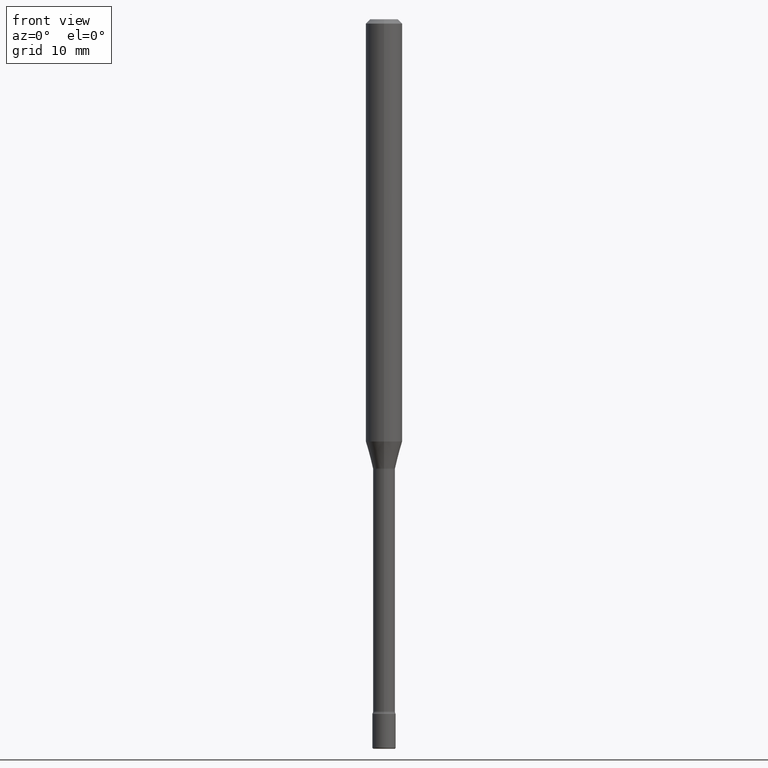
[diagram: clean part render]
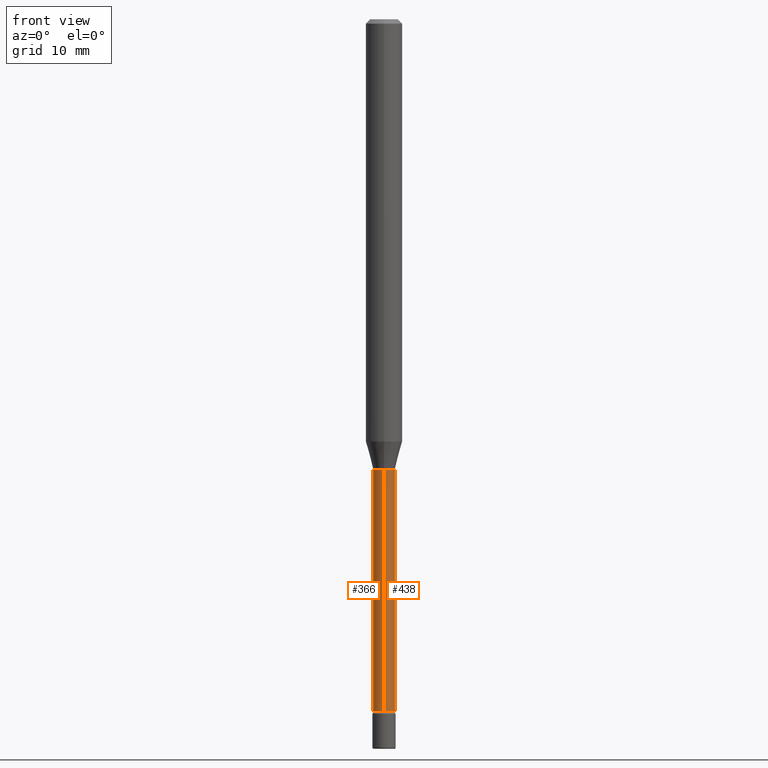
[diagram: same view with one multi-face feature highlighted, each face labeled with its STEP entity id]
A machine part, front view. The highlighted faces form ONE feature: a constant-radius fillet chain: 2 tangent blend faces with common blend radius 0.955 mm. The faces share edges in the B-rep.
Their STEP definitions:
[1] entity #438 (Cylinder):
#7 = VECTOR ( 'NONE', #489, 39.37007874015748143 ) ;
#29 = DIRECTION ( 'NONE',  ( -6.982962677686265922E-15, -1.000000000000000000, 0.000000000000000000 ) ) ;
#52 = EDGE_LOOP ( 'NONE', ( #415, #500, #278, #554 ) ) ;
#74 = AXIS2_PLACEMENT_3D ( 'NONE', #477, #80, #265 ) ;
#78 = DIRECTION ( 'NONE',  ( -2.445315096420110410E-29, 3.491701459975279518E-15, 1.000000000000000000 ) ) ;
#80 = DIRECTION ( 'NONE',  ( -2.445315096420110410E-29, 3.491701459975279518E-15, 1.000000000000000000 ) ) ;
#93 = LINE ( 'NONE', #332, #7 ) ;
#112 = CIRCLE ( 'NONE', #212, 0.03760000000000005699 ) ;
#128 = CARTESIAN_POINT ( 'NONE',  ( 2.671640686458558589E-16, 0.03759999999999461689, -1.541974787463811003 ) ) ;
#149 = VERTEX_POINT ( 'NONE', #227 ) ;
#165 = EDGE_CURVE ( 'NONE', #547, #270, #93, .T. ) ;
#167 = CYLINDRICAL_SURFACE ( 'NONE', #409, 0.03760000000000002923 ) ;
#208 = CIRCLE ( 'NONE', #74, 0.03760000000000000842 ) ;
#211 = FACE_OUTER_BOUND ( 'NONE', #52, .T. ) ;
#212 = AXIS2_PLACEMENT_3D ( 'NONE', #242, #514, #29 ) ;
#223 = DIRECTION ( 'NONE',  ( -2.445315096420110130E-29, 3.491701459975279518E-15, 1.000000000000000000 ) ) ;
#227 = CARTESIAN_POINT ( 'NONE',  ( -2.625593966809659350E-16, -0.03760000000000538606, -1.541974787463811003 ) ) ;
#242 = CARTESIAN_POINT ( 'NONE',  ( 5.799948008803896804E-29, -8.281831228936231021E-15, -2.371861204020250025 ) ) ;
#243 = VECTOR ( 'NONE', #223, 39.37007874015748143 ) ;
#265 = DIRECTION ( 'NONE',  ( -6.982962677686265922E-15, -1.000000000000000000, 0.000000000000000000 ) ) ;
#266 = EDGE_CURVE ( 'NONE', #387, #149, #351, .T. ) ;
#270 = VERTEX_POINT ( 'NONE', #128 ) ;
#275 = DIRECTION ( 'NONE',  ( -6.982962677686265922E-15, -1.000000000000000000, 3.491701459975280701E-15 ) ) ;
#278 = ORIENTED_EDGE ( 'NONE', *, *, #469, .F. ) ;
#332 = CARTESIAN_POINT ( 'NONE',  ( 2.671640686457978776E-16, 0.03760000000000002923, 3.467854239961754309E-16 ) ) ;
#347 = CARTESIAN_POINT ( 'NONE',  ( -1.169113584055446105E-44, 1.669184350826100908E-30, 4.780733988912460139E-16 ) ) ;
#351 = LINE ( 'NONE', #532, #243 ) ;
#381 = CARTESIAN_POINT ( 'NONE',  ( -2.625593966809460162E-16, -0.03760000000000833509, -2.371861204020250025 ) ) ;
#387 = VERTEX_POINT ( 'NONE', #381 ) ;
#409 = AXIS2_PLACEMENT_3D ( 'NONE', #347, #78, #275 ) ;
#415 = ORIENTED_EDGE ( 'NONE', *, *, #485, .T. ) ;
#426 = CARTESIAN_POINT ( 'NONE',  ( 2.756905814749770095E-16, 0.03759999999999177195, -2.371861204020250025 ) ) ;
#438 = ADVANCED_FACE ( 'NONE', ( #211 ), #167, .T. ) ;
#469 = EDGE_CURVE ( 'NONE', #149, #270, #208, .T. ) ;
#477 = CARTESIAN_POINT ( 'NONE',  ( 3.770614226084447877E-29, -5.384115616632460487E-15, -1.541974787463811003 ) ) ;
#485 = EDGE_CURVE ( 'NONE', #387, #547, #112, .T. ) ;
#489 = DIRECTION ( 'NONE',  ( -2.445315096420110130E-29, 3.491701459975279518E-15, 1.000000000000000000 ) ) ;
#500 = ORIENTED_EDGE ( 'NONE', *, *, #165, .T. ) ;
#514 = DIRECTION ( 'NONE',  ( -2.445315096420110410E-29, 3.491701459975279518E-15, 1.000000000000000000 ) ) ;
#532 = CARTESIAN_POINT ( 'NONE',  ( -2.625593966810038003E-16, -0.03760000000000002923, 6.093613737863167448E-16 ) ) ;
#547 = VERTEX_POINT ( 'NONE', #426 ) ;
#554 = ORIENTED_EDGE ( 'NONE', *, *, #266, .F. ) ;
[2] entity #366 (Cylinder):
#7 = VECTOR ( 'NONE', #489, 39.37007874015748143 ) ;
#25 = DIRECTION ( 'NONE',  ( -6.982962677686265922E-15, -1.000000000000000000, 3.491701459975280701E-15 ) ) ;
#34 = EDGE_CURVE ( 'NONE', #270, #149, #428, .T. ) ;
#50 = AXIS2_PLACEMENT_3D ( 'NONE', #110, #249, #424 ) ;
#63 = ORIENTED_EDGE ( 'NONE', *, *, #165, .F. ) ;
#67 = DIRECTION ( 'NONE',  ( -2.445315096420110410E-29, 3.491701459975279518E-15, 1.000000000000000000 ) ) ;
#88 = EDGE_LOOP ( 'NONE', ( #63, #109, #240, #445 ) ) ;
#93 = LINE ( 'NONE', #332, #7 ) ;
#109 = ORIENTED_EDGE ( 'NONE', *, *, #531, .T. ) ;
#110 = CARTESIAN_POINT ( 'NONE',  ( 3.770614226084447877E-29, -5.384115616632460487E-15, -1.541974787463811003 ) ) ;
#128 = CARTESIAN_POINT ( 'NONE',  ( 2.671640686458558589E-16, 0.03759999999999461689, -1.541974787463811003 ) ) ;
#138 = FACE_OUTER_BOUND ( 'NONE', #88, .T. ) ;
#149 = VERTEX_POINT ( 'NONE', #227 ) ;
#162 = CARTESIAN_POINT ( 'NONE',  ( 5.799948008803896804E-29, -8.281831228936231021E-15, -2.371861204020250025 ) ) ;
#165 = EDGE_CURVE ( 'NONE', #547, #270, #93, .T. ) ;
#223 = DIRECTION ( 'NONE',  ( -2.445315096420110130E-29, 3.491701459975279518E-15, 1.000000000000000000 ) ) ;
#227 = CARTESIAN_POINT ( 'NONE',  ( -2.625593966809659350E-16, -0.03760000000000538606, -1.541974787463811003 ) ) ;
#240 = ORIENTED_EDGE ( 'NONE', *, *, #266, .T. ) ;
#243 = VECTOR ( 'NONE', #223, 39.37007874015748143 ) ;
#249 = DIRECTION ( 'NONE',  ( -2.445315096420110410E-29, 3.491701459975279518E-15, 1.000000000000000000 ) ) ;
#259 = DIRECTION ( 'NONE',  ( -6.982962677686265922E-15, -1.000000000000000000, 0.000000000000000000 ) ) ;
#266 = EDGE_CURVE ( 'NONE', #387, #149, #351, .T. ) ;
#268 = AXIS2_PLACEMENT_3D ( 'NONE', #162, #67, #259 ) ;
#270 = VERTEX_POINT ( 'NONE', #128 ) ;
#277 = CYLINDRICAL_SURFACE ( 'NONE', #457, 0.03760000000000002923 ) ;
#332 = CARTESIAN_POINT ( 'NONE',  ( 2.671640686457978776E-16, 0.03760000000000002923, 3.467854239961754309E-16 ) ) ;
#351 = LINE ( 'NONE', #532, #243 ) ;
#366 = ADVANCED_FACE ( 'NONE', ( #138 ), #277, .T. ) ;
#379 = CARTESIAN_POINT ( 'NONE',  ( -1.169113584055446105E-44, 1.669184350826100908E-30, 4.780733988912460139E-16 ) ) ;
#381 = CARTESIAN_POINT ( 'NONE',  ( -2.625593966809460162E-16, -0.03760000000000833509, -2.371861204020250025 ) ) ;
#387 = VERTEX_POINT ( 'NONE', #381 ) ;
#423 = DIRECTION ( 'NONE',  ( -2.445315096420110410E-29, 3.491701459975279518E-15, 1.000000000000000000 ) ) ;
#424 = DIRECTION ( 'NONE',  ( -6.982962677686265922E-15, -1.000000000000000000, 0.000000000000000000 ) ) ;
#426 = CARTESIAN_POINT ( 'NONE',  ( 2.756905814749770095E-16, 0.03759999999999177195, -2.371861204020250025 ) ) ;
#428 = CIRCLE ( 'NONE', #50, 0.03760000000000000842 ) ;
#445 = ORIENTED_EDGE ( 'NONE', *, *, #34, .F. ) ;
#457 = AXIS2_PLACEMENT_3D ( 'NONE', #379, #423, #25 ) ;
#489 = DIRECTION ( 'NONE',  ( -2.445315096420110130E-29, 3.491701459975279518E-15, 1.000000000000000000 ) ) ;
#513 = CIRCLE ( 'NONE', #268, 0.03760000000000005699 ) ;
#531 = EDGE_CURVE ( 'NONE', #547, #387, #513, .T. ) ;
#532 = CARTESIAN_POINT ( 'NONE',  ( -2.625593966810038003E-16, -0.03760000000000002923, 6.093613737863167448E-16 ) ) ;
#547 = VERTEX_POINT ( 'NONE', #426 ) ;